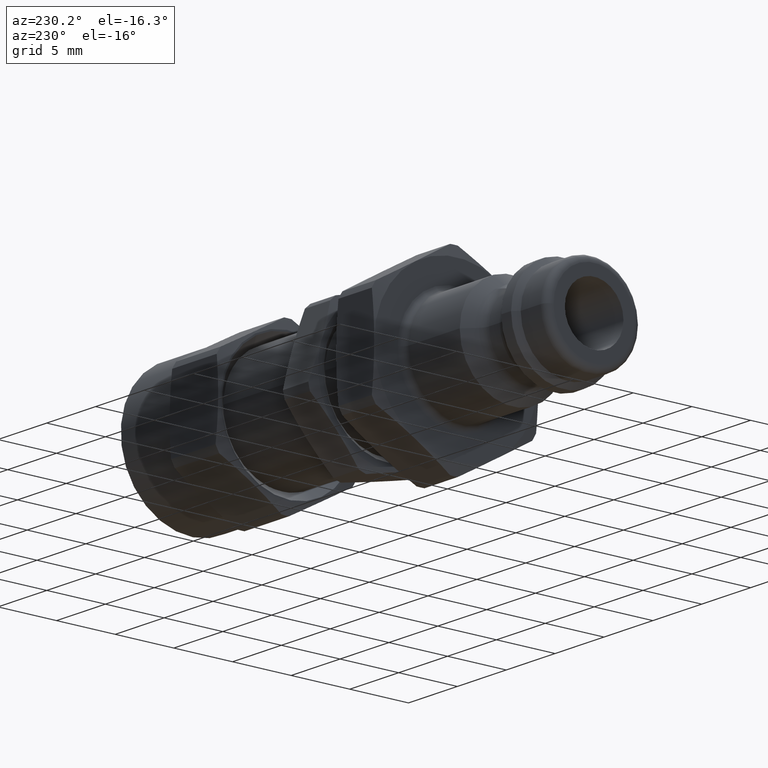
[diagram: clean part render]
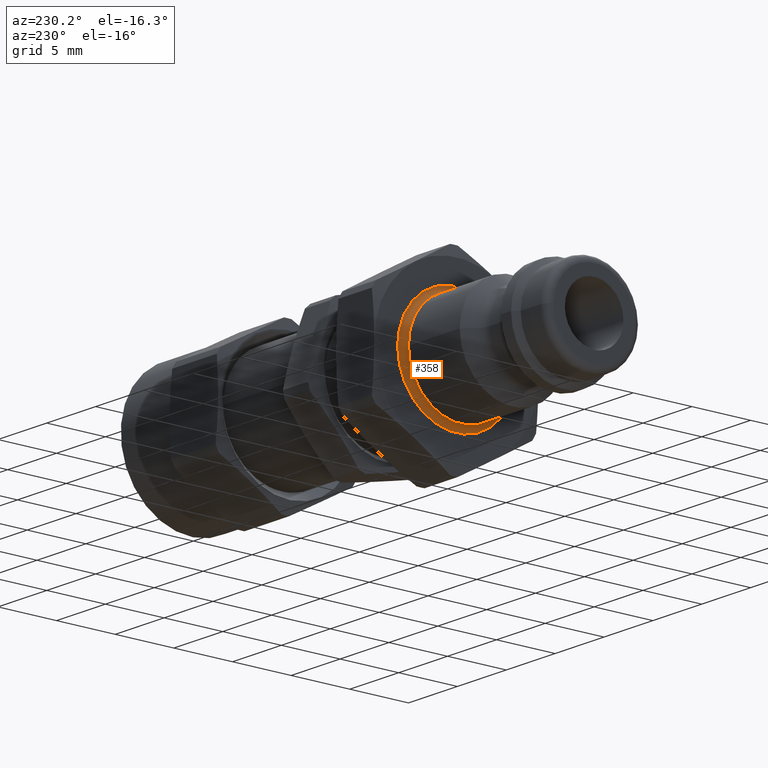
[diagram: same view with one face highlighted and labeled with its STEP entity id]
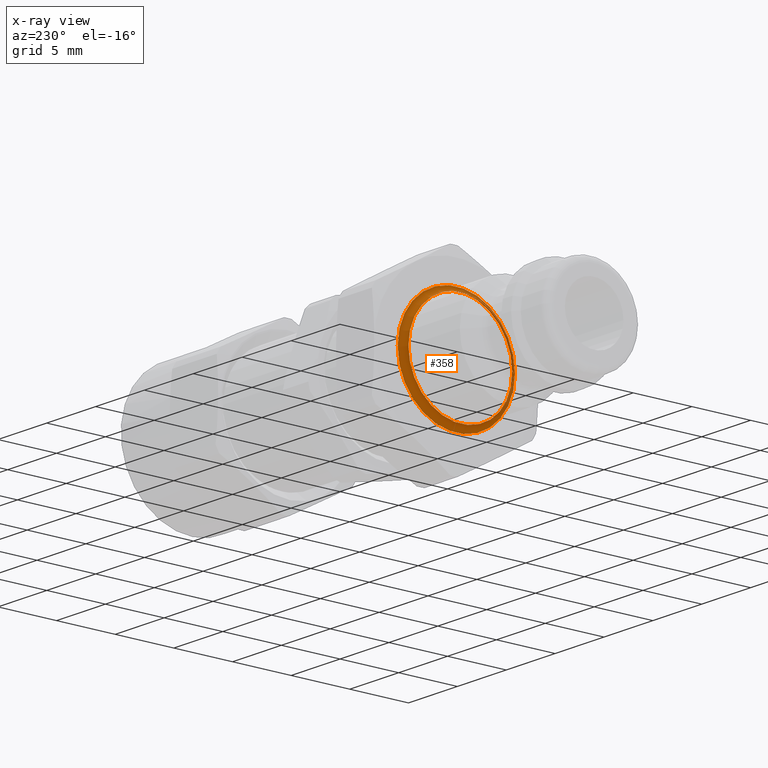
[diagram: x-ray of the same camera — body ghosted, the highlighted face saturated]
A machine part, auxiliary view. The second image highlights one B-rep face of the part: STEP entity #358.
The next image is the same camera in x-ray: the body ghosted, the highlighted face saturated — about 16% of this face is hidden behind the body in this view.
In plain terms, the highlighted toroidal blend (fillet) surface has major radius 5 mm and minor (blend) radius 0.5 mm.
Its self-contained STEP definition (entity closure, byte-faithful):
#331=CARTESIAN_POINT('',(13.600000000000001,0.0,0.0));
#332=DIRECTION('',(1.0,0.0,0.0));
#333=DIRECTION('',(0.0,0.0,-1.0));
#334=AXIS2_PLACEMENT_3D('',#331,#332,#333);
#335=TOROIDAL_SURFACE('',#334,5.0,0.5);
#336=CARTESIAN_POINT('',(13.600000000000001,4.5,0.0));
#337=VERTEX_POINT('',#336);
#338=CARTESIAN_POINT('',(13.600000000000001,0.0,0.0));
#339=DIRECTION('',(1.0,0.0,0.0));
#340=DIRECTION('',(0.0,-1.0,0.0));
#341=AXIS2_PLACEMENT_3D('',#338,#339,#340);
#342=CIRCLE('',#341,4.5);
#343=EDGE_CURVE('',#337,#337,#342,.T.);
#344=ORIENTED_EDGE('',*,*,#343,.T.);
#345=EDGE_LOOP('',(#344));
#346=FACE_OUTER_BOUND('',#345,.T.);
#347=CARTESIAN_POINT('',(14.100000000000001,5.0,-1.224647E-015));
#348=VERTEX_POINT('',#347);
#349=CARTESIAN_POINT('',(14.100000000000001,0.0,0.0));
#350=DIRECTION('',(-1.0,0.0,0.0));
#351=DIRECTION('',(0.0,-1.0,0.0));
#352=AXIS2_PLACEMENT_3D('',#349,#350,#351);
#353=CIRCLE('',#352,5.0);
#354=EDGE_CURVE('',#348,#348,#353,.T.);
#355=ORIENTED_EDGE('',*,*,#354,.T.);
#356=EDGE_LOOP('',(#355));
#357=FACE_BOUND('',#356,.T.);
#358=ADVANCED_FACE('',(#346,#357),#335,.F.);